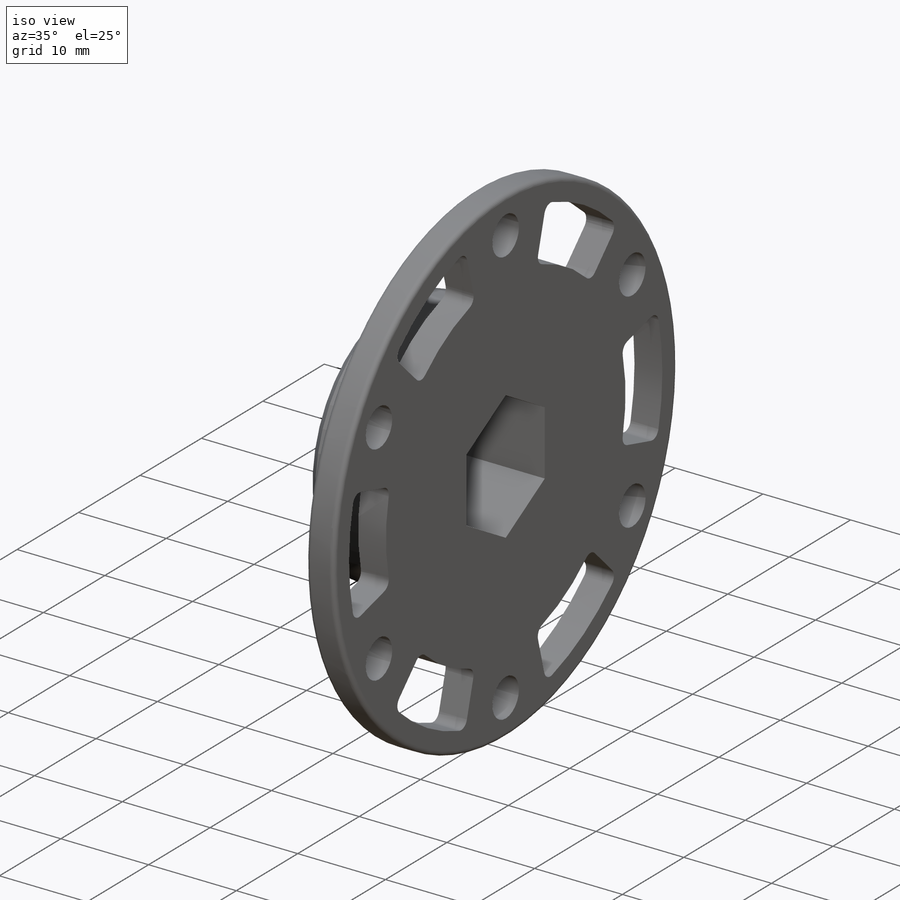
[diagram: iso view]
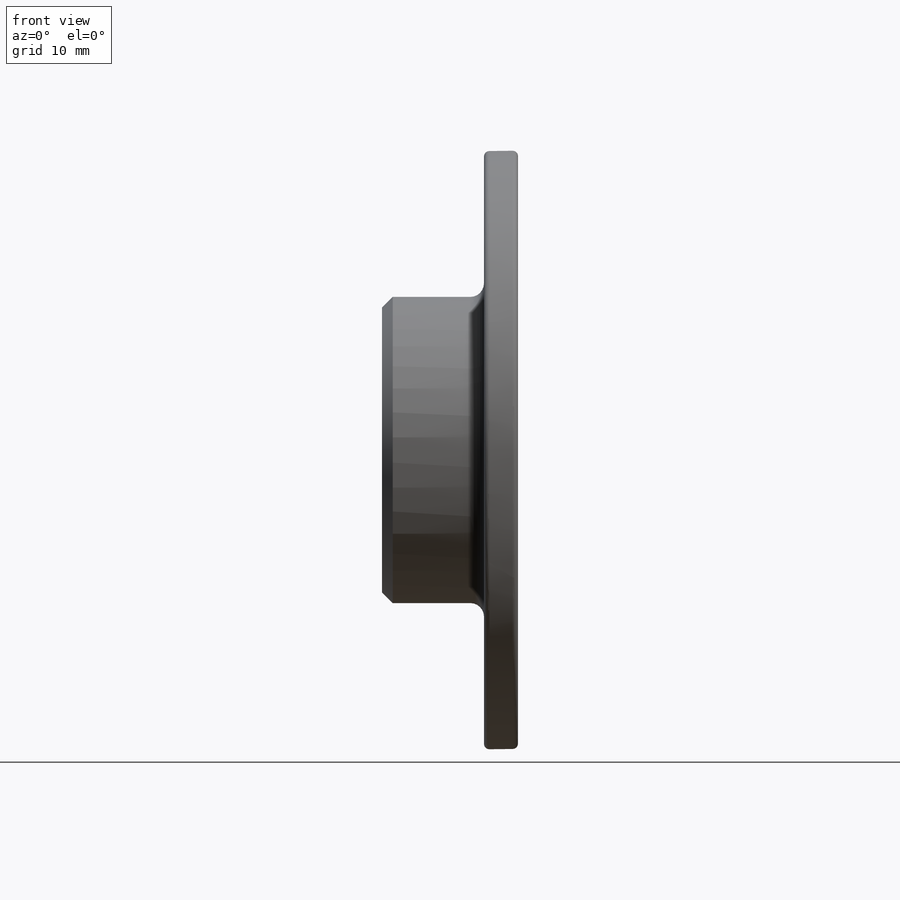
[diagram: front view]
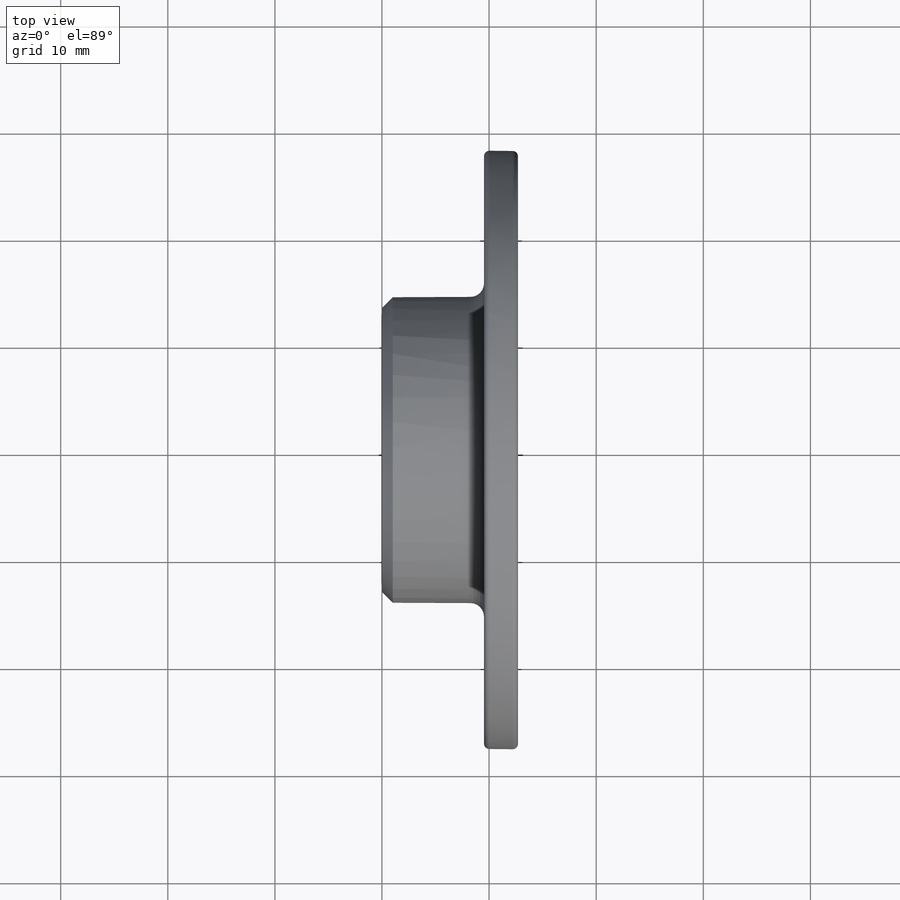
[diagram: top view]
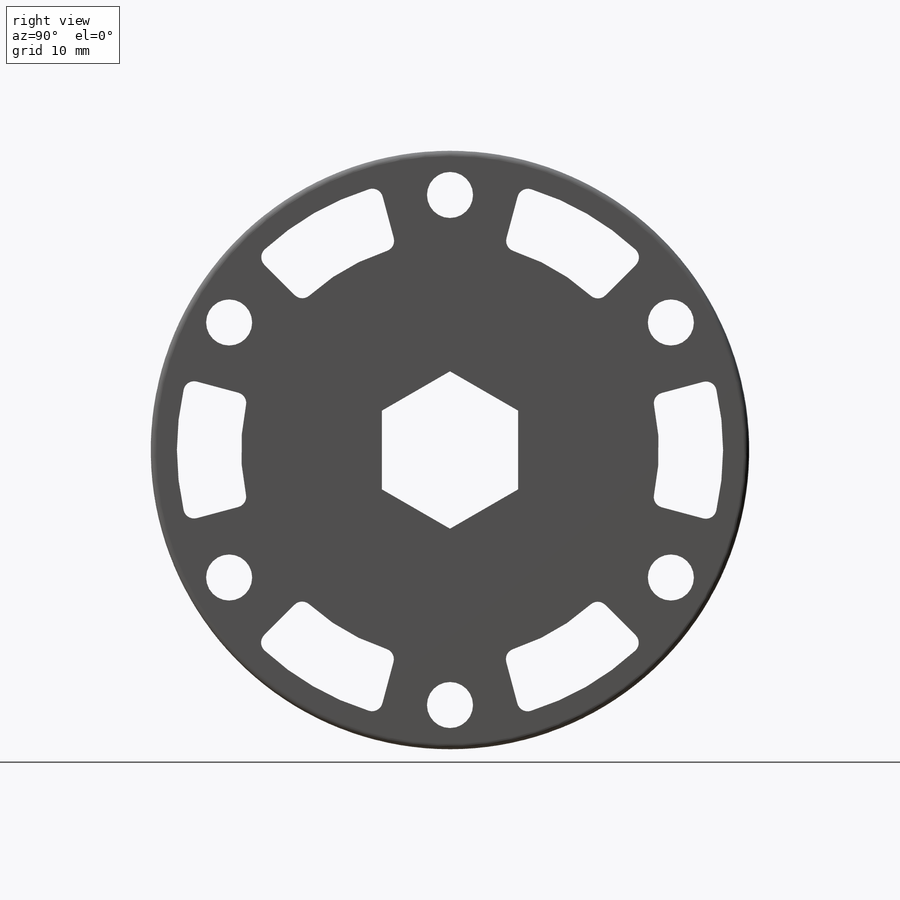
[diagram: right view]
SOLIDWORKS PART (.sldprt)
format: sldprt  version: not decoded by parser v0  size: 414,720 bytes
history: native  units: mm
features: sketch x11, cut_extrude x7, fillet x3, material x1, plane x1, revolve x1, extrude x1, hole x1, chamfer x1 (+12 scaffold rows collapsed)
feature tree (39):
  scaffold x12  (default folders/planes/origin — collapsed)
  material  "Material <not specified>"
  plane  "Plane1"
  sketch  "Sketch1"
  revolve  "Revolve1"  Angle=360deg
  sketch  "Sketch2"
  cut_extrude  "Cut-Extrude1"  Depth=3.175mm
  sketch  "Sketch3"
  cut_extrude  "Cut-Extrude2"  Depth=3.175mm
  sketch  "Sketch4"
  cut_extrude  "Cut-Extrude3"  Depth=3.175mm
  sketch  "Sketch5"
  cut_extrude  "Cut-Extrude4"  Depth=3.175mm
  sketch  "Sketch6"
  cut_extrude  "Cut-Extrude5"  Depth=3.175mm
  sketch  "Sketch7"
  cut_extrude  "Cut-Extrude6"  Depth=3.175mm
  sketch  "Sketch8"
  extrude  "Boss-Extrude1"  Depth=9.525mm
  sketch  "Sketch9"
  cut_extrude  "Cut-Extrude7"  Depth=12.7mm
  hole  "Ø4.3 (4.3) Diameter Hole1"  Diameter=4.3mm Depth=12.7mm
  sketch  "Sketch11"
  sketch  "Sketch10"  dims[hole-wizard template sketch: 60 standard entries collapsed; hole parameters kept: c18.Thru Hole Depth=12.7mm]
  chamfer  "Chamfer1"  Distance=1mm Angle=45deg
  fillet  "Fillet1"  Radius=0.5mm
  fillet  "Fillet2"  Radius=1mm
  fillet  "Fillet3"  Radius=1.27mm
decode coverage: 15 of 25 modeling features carry decoded parameters
note: ~ marks probable driven/reference dimensions
note: suppression state not decoded; provenance and decode notes live in map.json
